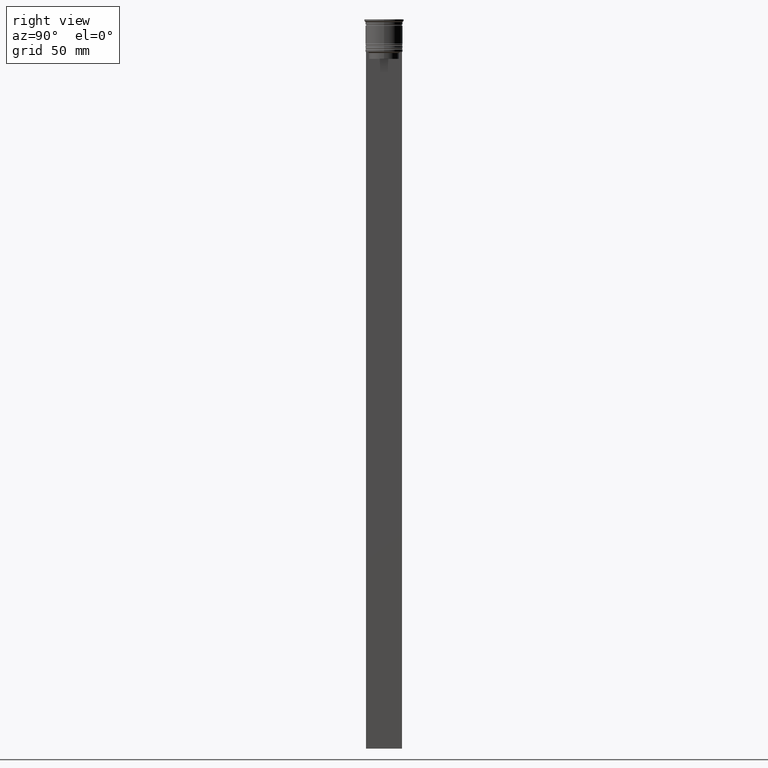
[diagram: clean part render]
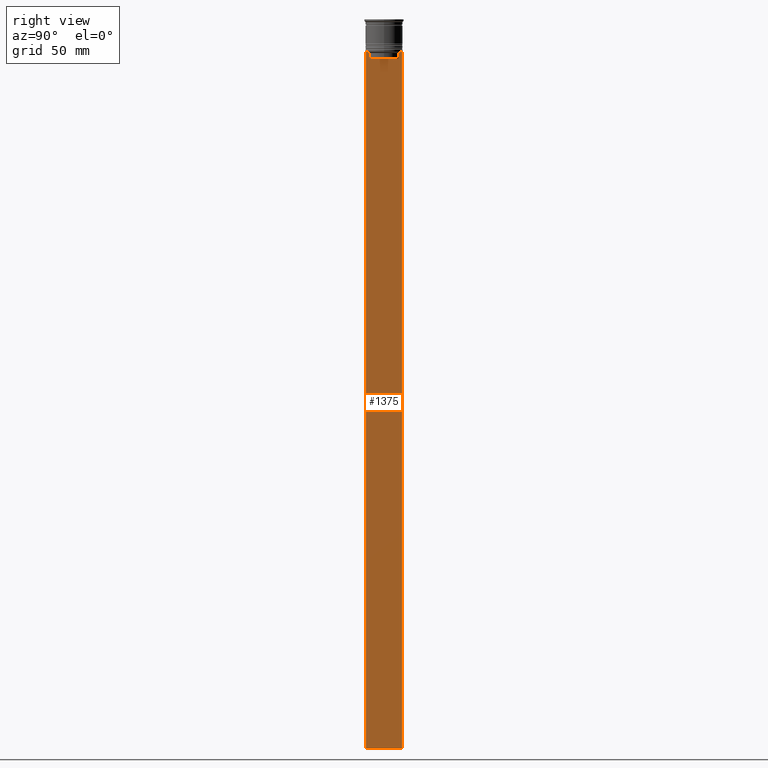
[diagram: same view with one face highlighted and labeled with its STEP entity id]
A machine part, right view. The second image highlights one B-rep face of the part: STEP entity #1375.
In plain terms, the highlighted planar face has unit normal (-1, 0, 0).
Its self-contained STEP definition (entity closure, byte-faithful):
#7 = ORIENTED_EDGE ( 'NONE', *, *, #2149, .T. ) ;
#8 = CARTESIAN_POINT ( 'NONE',  ( 0.5000000000000001110, 6.380438856379708312, 0.000000000000000000 ) ) ;
#18 = VECTOR ( 'NONE', #1695, 1000.000000000000000 ) ;
#33 = ORIENTED_EDGE ( 'NONE', *, *, #446, .T. ) ;
#58 = CARTESIAN_POINT ( 'NONE',  ( 0.5000000000000001110, 6.881860213634098500, -14.00000000000000178 ) ) ;
#69 = CARTESIAN_POINT ( 'NONE',  ( 0.5000000000000001110, 7.750000000000002665, -14.00000000000000178 ) ) ;
#87 = DIRECTION ( 'NONE',  ( 0.000000000000000000, 0.000000000000000000, 1.000000000000000000 ) ) ;
#88 = CARTESIAN_POINT ( 'NONE',  ( 0.5000000000000001110, 6.881860213634098500, -14.00000000000000178 ) ) ;
#133 = VECTOR ( 'NONE', #1076, 1000.000000000000000 ) ;
#153 = LINE ( 'NONE', #901, #1610 ) ;
#166 = ORIENTED_EDGE ( 'NONE', *, *, #629, .T. ) ;
#167 = CARTESIAN_POINT ( 'NONE',  ( 0.5000000000000001110, -6.380438856379708312, -14.50000000000000000 ) ) ;
#175 = ORIENTED_EDGE ( 'NONE', *, *, #329, .T. ) ;
#197 = CARTESIAN_POINT ( 'NONE',  ( 0.5000000000000001110, 7.750000000000002665, -314.0000000000000000 ) ) ;
#263 = CARTESIAN_POINT ( 'NONE',  ( 0.5000000000000001110, 7.750000000000002665, 1.532224567009066840 ) ) ;
#265 = VERTEX_POINT ( 'NONE', #2035 ) ;
#329 = EDGE_CURVE ( 'NONE', #1176, #733, #963, .T. ) ;
#414 = VERTEX_POINT ( 'NONE', #1214 ) ;
#425 = CARTESIAN_POINT ( 'NONE',  ( 0.5000000000000001110, 6.547597841304911626, -14.33335192459222718 ) ) ;
#433 = DIRECTION ( 'NONE',  ( 0.000000000000000000, -1.000000000000000000, 0.000000000000000000 ) ) ;
#446 = EDGE_CURVE ( 'NONE', #733, #756, #520, .T. ) ;
#489 = VERTEX_POINT ( 'NONE', #1188 ) ;
#520 = B_SPLINE_CURVE_WITH_KNOTS ( 'NONE', 3,
 ( #88, #813, #425, #2307 ),
 .UNSPECIFIED., .F., .F.,
 ( 4, 4 ),
 ( 0.01172465562756038263, 0.01243276816391822651 ),
 .UNSPECIFIED. ) ;
#534 = VECTOR ( 'NONE', #1359, 1000.000000000000000 ) ;
#565 = ORIENTED_EDGE ( 'NONE', *, *, #793, .F. ) ;
#578 = ORIENTED_EDGE ( 'NONE', *, *, #592, .T. ) ;
#592 = EDGE_CURVE ( 'NONE', #489, #414, #153, .T. ) ;
#610 = LINE ( 'NONE', #8, #1930 ) ;
#629 = EDGE_CURVE ( 'NONE', #2225, #1685, #954, .T. ) ;
#644 = EDGE_CURVE ( 'NONE', #265, #2189, #2178, .T. ) ;
#691 = CARTESIAN_POINT ( 'NONE',  ( 0.5000000000000001110, -6.714736947305993908, -14.16668390685738821 ) ) ;
#733 = VERTEX_POINT ( 'NONE', #58 ) ;
#756 = VERTEX_POINT ( 'NONE', #1334 ) ;
#757 = LINE ( 'NONE', #2238, #1734 ) ;
#778 = CARTESIAN_POINT ( 'NONE',  ( 0.5000000000000001110, -7.749999999999999112, -14.00000000000000178 ) ) ;
#793 = EDGE_CURVE ( 'NONE', #1176, #2329, #1924, .T. ) ;
#813 = CARTESIAN_POINT ( 'NONE',  ( 0.5000000000000001110, 6.714736947114692711, -14.16668390704818847 ) ) ;
#820 = CARTESIAN_POINT ( 'NONE',  ( 0.5000000000000001110, -6.380438856379708312, 0.000000000000000000 ) ) ;
#821 = ORIENTED_EDGE ( 'NONE', *, *, #857, .T. ) ;
#857 = EDGE_CURVE ( 'NONE', #2189, #2225, #2141, .T. ) ;
#901 = CARTESIAN_POINT ( 'NONE',  ( 0.5000000000000001110, -7.749999999999999112, 1.532224567009066840 ) ) ;
#954 = B_SPLINE_CURVE_WITH_KNOTS ( 'NONE', 3,
 ( #2222, #2320, #691, #2144 ),
 .UNSPECIFIED., .F., .F.,
 ( 4, 4 ),
 ( 0.02996184199614751464, 0.03067452609193705923 ),
 .UNSPECIFIED. ) ;
#963 = LINE ( 'NONE', #778, #18 ) ;
#964 = VECTOR ( 'NONE', #1770, 1000.000000000000000 ) ;
#1013 = CARTESIAN_POINT ( 'NONE',  ( 0.5000000000000001110, -7.749999999999999112, -314.0000000000000000 ) ) ;
#1076 = DIRECTION ( 'NONE',  ( 0.000000000000000000, -1.000000000000000000, 0.000000000000000000 ) ) ;
#1085 = EDGE_CURVE ( 'NONE', #756, #265, #610, .T. ) ;
#1100 = CARTESIAN_POINT ( 'NONE',  ( 0.5000000000000001110, -6.881860213634098500, -14.00000000000000178 ) ) ;
#1138 = EDGE_LOOP ( 'NONE', ( #175, #33, #1142, #1452, #821, #166, #7, #578, #2252, #565 ) ) ;
#1142 = ORIENTED_EDGE ( 'NONE', *, *, #1085, .T. ) ;
#1176 = VERTEX_POINT ( 'NONE', #69 ) ;
#1188 = CARTESIAN_POINT ( 'NONE',  ( 0.5000000000000001110, -7.749999999999999112, -14.00000000000000178 ) ) ;
#1214 = CARTESIAN_POINT ( 'NONE',  ( 0.5000000000000001110, -7.749999999999999112, -314.0000000000000000 ) ) ;
#1223 = DIRECTION ( 'NONE',  ( 0.000000000000000000, 0.000000000000000000, -1.000000000000000000 ) ) ;
#1334 = CARTESIAN_POINT ( 'NONE',  ( 0.5000000000000001110, 6.380438856379708312, -14.50000000000000000 ) ) ;
#1359 = DIRECTION ( 'NONE',  ( 0.000000000000000000, 0.000000000000000000, -1.000000000000000000 ) ) ;
#1375 = ADVANCED_FACE ( 'NONE', ( #1749 ), #1390, .F. ) ;
#1390 = PLANE ( 'NONE',  #2200 ) ;
#1452 = ORIENTED_EDGE ( 'NONE', *, *, #644, .T. ) ;
#1606 = CARTESIAN_POINT ( 'NONE',  ( 0.5000000000000001110, 6.399999999999999467, -17.00000000000000000 ) ) ;
#1610 = VECTOR ( 'NONE', #1223, 1000.000000000000000 ) ;
#1685 = VERTEX_POINT ( 'NONE', #1100 ) ;
#1695 = DIRECTION ( 'NONE',  ( 0.000000000000000000, -1.000000000000000000, 0.000000000000000000 ) ) ;
#1734 = VECTOR ( 'NONE', #433, 1000.000000000000000 ) ;
#1743 = DIRECTION ( 'NONE',  ( 0.000000000000000000, 1.000000000000000000, 0.000000000000000000 ) ) ;
#1749 = FACE_OUTER_BOUND ( 'NONE', #1138, .T. ) ;
#1770 = DIRECTION ( 'NONE',  ( -0.000000000000000000, -0.000000000000000000, 1.000000000000000000 ) ) ;
#1788 = CARTESIAN_POINT ( 'NONE',  ( 0.5000000000000001110, -7.749999999999999112, 1.532224567009066840 ) ) ;
#1902 = DIRECTION ( 'NONE',  ( 0.000000000000000000, 0.000000000000000000, -1.000000000000000000 ) ) ;
#1924 = LINE ( 'NONE', #263, #534 ) ;
#1930 = VECTOR ( 'NONE', #1902, 1000.000000000000000 ) ;
#2032 = EDGE_CURVE ( 'NONE', #414, #2329, #2299, .T. ) ;
#2035 = CARTESIAN_POINT ( 'NONE',  ( 0.5000000000000001110, 6.380438856379708312, -17.00000000000000000 ) ) ;
#2141 = LINE ( 'NONE', #820, #964 ) ;
#2143 = DIRECTION ( 'NONE',  ( -1.000000000000000000, 0.000000000000000000, 0.000000000000000000 ) ) ;
#2144 = CARTESIAN_POINT ( 'NONE',  ( 0.5000000000000001110, -6.881860213634098500, -14.00000000000000178 ) ) ;
#2149 = EDGE_CURVE ( 'NONE', #1685, #489, #757, .T. ) ;
#2178 = LINE ( 'NONE', #1606, #133 ) ;
#2189 = VERTEX_POINT ( 'NONE', #2207 ) ;
#2200 = AXIS2_PLACEMENT_3D ( 'NONE', #1788, #2143, #87 ) ;
#2207 = CARTESIAN_POINT ( 'NONE',  ( 0.5000000000000001110, -6.380438856379708312, -17.00000000000000000 ) ) ;
#2222 = CARTESIAN_POINT ( 'NONE',  ( 0.5000000000000001110, -6.380438856379708312, -14.50000000000000000 ) ) ;
#2225 = VERTEX_POINT ( 'NONE', #167 ) ;
#2238 = CARTESIAN_POINT ( 'NONE',  ( 0.5000000000000001110, -7.749999999999999112, -14.00000000000000178 ) ) ;
#2252 = ORIENTED_EDGE ( 'NONE', *, *, #2032, .T. ) ;
#2299 = LINE ( 'NONE', #1013, #2313 ) ;
#2307 = CARTESIAN_POINT ( 'NONE',  ( 0.5000000000000001110, 6.380438856379708312, -14.50000000000000000 ) ) ;
#2313 = VECTOR ( 'NONE', #1743, 1000.000000000000000 ) ;
#2320 = CARTESIAN_POINT ( 'NONE',  ( 0.5000000000000001110, -6.547597841511247019, -14.33335192438652150 ) ) ;
#2329 = VERTEX_POINT ( 'NONE', #197 ) ;